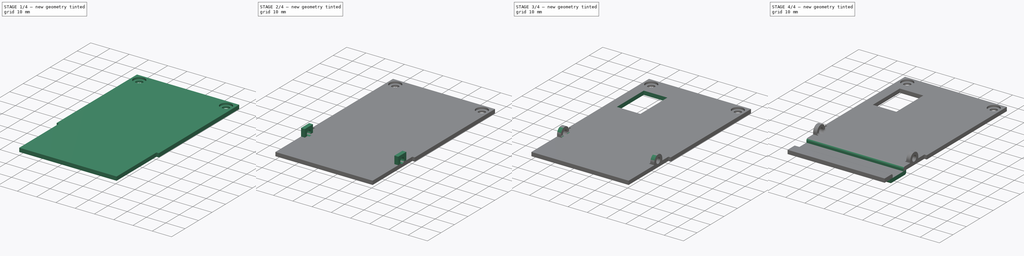
[diagram: build sequence overview — one tinted view per stage of 4, left to right]
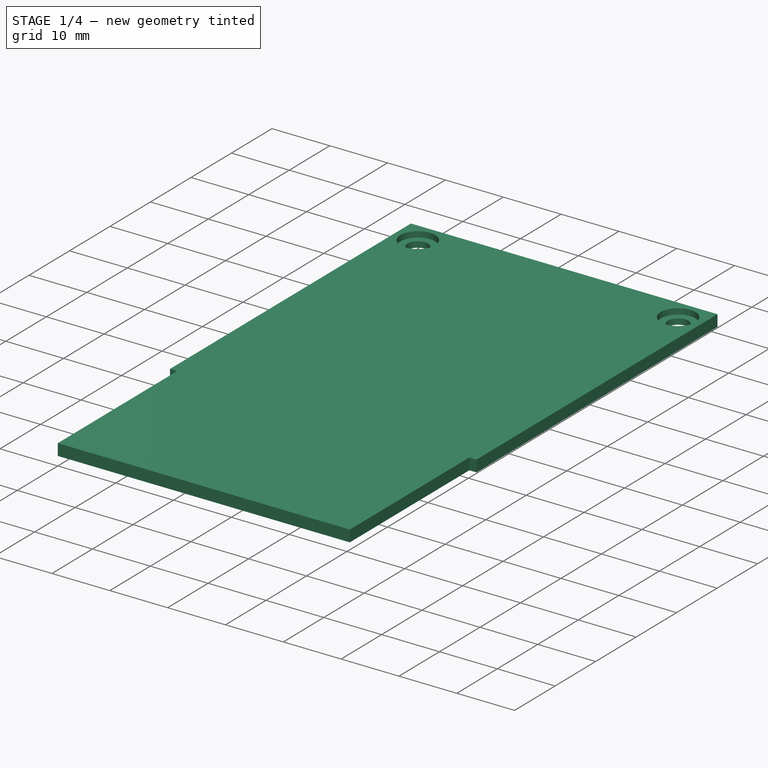
[diagram: stage 1 of 4 — iso view after this stage's code; geometry added in this stage tinted green]
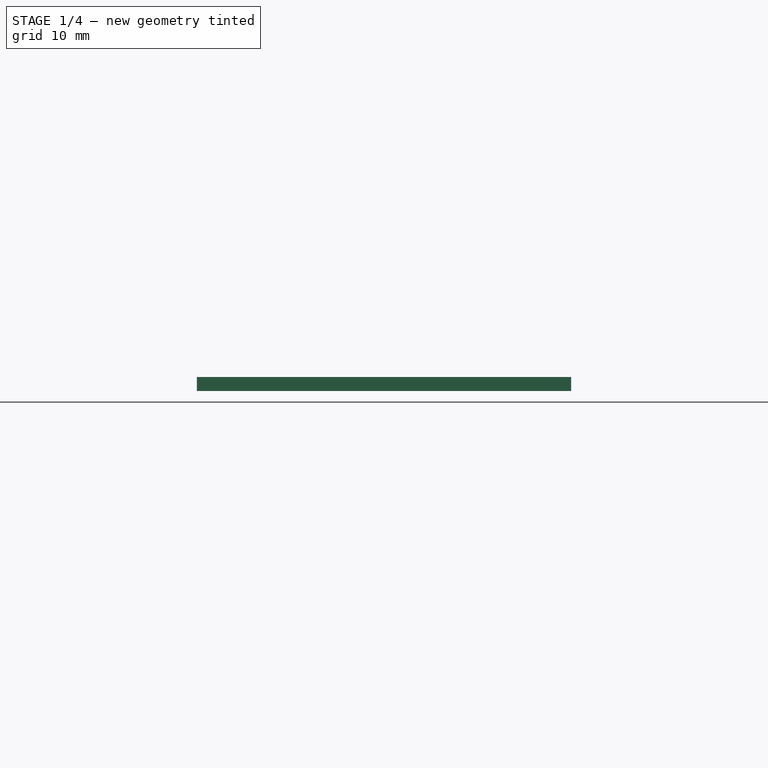
[diagram: stage 1 of 4 — front view after this stage's code; geometry added in this stage tinted green]
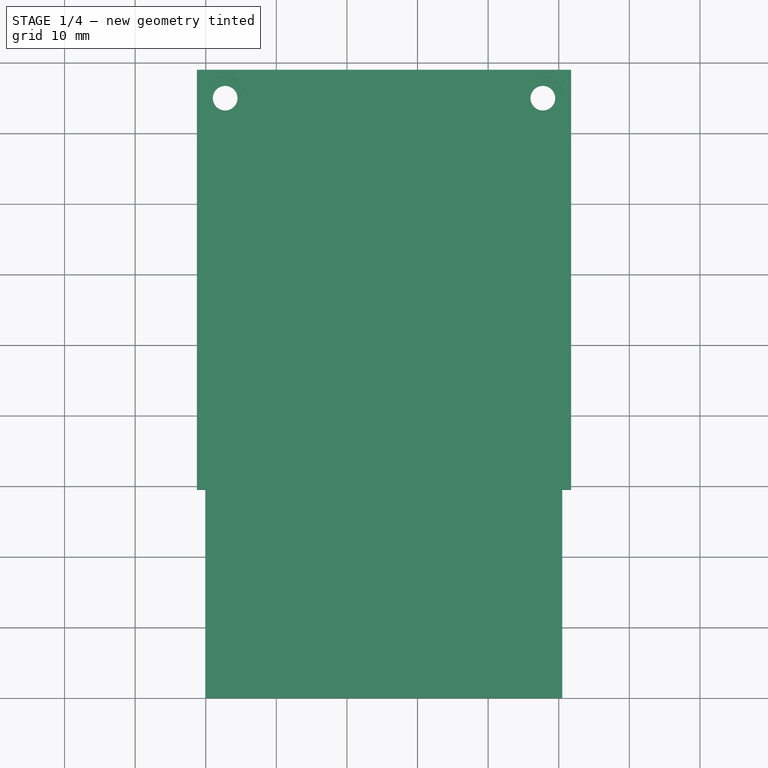
[diagram: stage 1 of 4 — top view after this stage's code; geometry added in this stage tinted green]
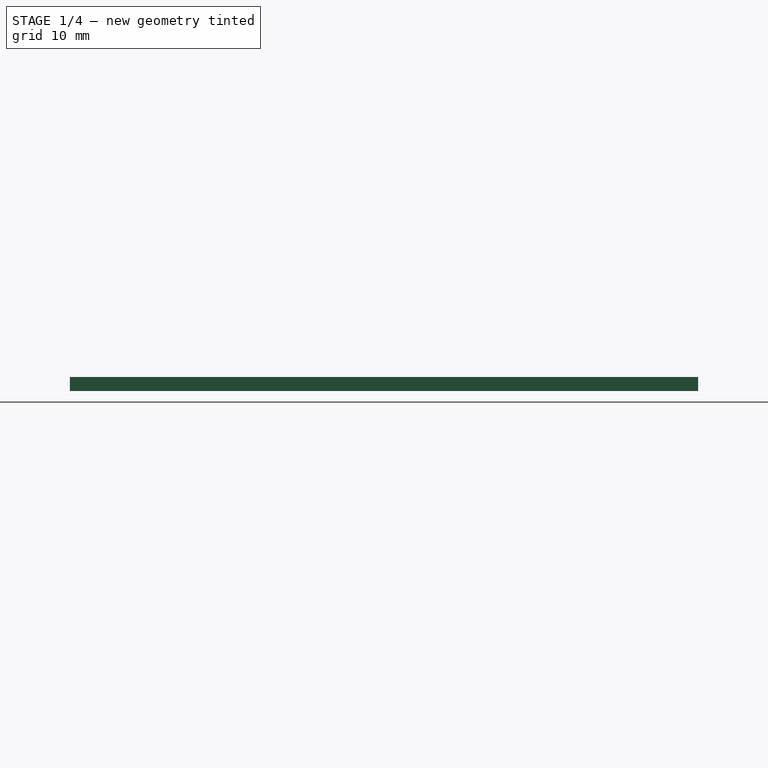
[diagram: stage 1 of 4 — right view after this stage's code; geometry added in this stage tinted green]
FCSTD DOCUMENT  (FreeCAD 0.19R)
Label: screen_case_back
License: All rights reserved
LicenseURL: http://en.wikipedia.org/wiki/All_rights_reserved
objects: Sketcher::SketchObject×9, PartDesign::Pocket×6, PartDesign::Pad×3, PartDesign::Fillet×3, PartDesign::Body×1
note: 34 computed .brp shape members not serialized (recipe doc carries the construction recipe); baked Part::Feature solids carry a one-line shape summary decoded from their .brp

FEATURE [Sketcher::SketchObject] Sketch
  FullyConstrained = true
  MapMode = 5
  Support = -> [XY_Plane]
  sketch-geometry (8):
    g0: LineSegment StartX=0 StartY=0 StartZ=0 EndX=0 EndY=29.5 EndZ=0
    g1: LineSegment StartX=0 StartY=29.5 StartZ=0 EndX=-1.25 EndY=29.5 EndZ=0
    g2: LineSegment StartX=-1.25 StartY=29.5 StartZ=0 EndX=-1.25 EndY=89 EndZ=0
    g3: LineSegment StartX=-1.25 StartY=89 StartZ=0 EndX=51.75 EndY=89 EndZ=0
    g4: LineSegment StartX=51.75 StartY=89 StartZ=0 EndX=51.75 EndY=29.5 EndZ=0
    g5: LineSegment StartX=51.75 StartY=29.5 StartZ=0 EndX=50.5 EndY=29.5 EndZ=0
    g6: LineSegment StartX=50.5 StartY=29.5 StartZ=0 EndX=50.5 EndY=0 EndZ=0
    g7: LineSegment StartX=50.5 StartY=0 StartZ=0 EndX=0 EndY=0 EndZ=0
  constraints (23):
    c: Coincident(g-1,g0)
    c: Coincident(g0,g1)
    c: Horizontal(g1)
    c: Coincident(g1,g2)
    c: Vertical(g2)
    c: Coincident(g2,g3)
    c: Horizontal(g3)
    c: Coincident(g3,g4)
    c: Vertical(g4)
    c: Coincident(g4,g5)
    c: Horizontal(g5)
    c: Coincident(g5,g6)
    c: Vertical(g6)
    c: Coincident(g6,g7)
    c: Coincident(g7,g0)
    c: Vertical(g0)
    c: Horizontal(g7)
    c: DistanceX(g7,g7) = 50.5
    c: DistanceX(g3,g3) = 53
    c: Equal(g1,g5)
    c: DistanceY(g2,g2) = 59.5
    c: DistanceY(g0,g2) = 89
    c: Equal(g4,g2)
FEATURE [PartDesign::Pad] Pad
  Direction = (1,1,1)
  Length = 2
  Length2 = 100
  Profile = -> Sketch
  Type = 0
FEATURE [Sketcher::SketchObject] Sketch001
  FullyConstrained = true
  MapMode = 5
  Placement = pos=(0,0,2) rot=(0,0,1;0rad)
  Support = -> [Pad]
  sketch-geometry (10):
    g0: LineSegment StartX=-1.25 StartY=89 StartZ=0 EndX=5.75 EndY=89 EndZ=0
    g1: LineSegment StartX=5.75 StartY=89 StartZ=0 EndX=5.75 EndY=82 EndZ=0
    g2: LineSegment StartX=5.75 StartY=82 StartZ=0 EndX=-1.25 EndY=82 EndZ=0
    g3: LineSegment StartX=-1.25 StartY=82 StartZ=0 EndX=-1.25 EndY=89 EndZ=0
    g4: LineSegment StartX=51.75 StartY=89 StartZ=0 EndX=44.75 EndY=89 EndZ=0
    g5: LineSegment StartX=44.75 StartY=89 StartZ=0 EndX=44.75 EndY=82 EndZ=0
    g6: LineSegment StartX=44.75 StartY=82 StartZ=0 EndX=51.75 EndY=82 EndZ=0
    g7: LineSegment StartX=51.75 StartY=82 StartZ=0 EndX=51.75 EndY=89 EndZ=0
    g8: Circle CenterX=2.75 CenterY=85 CenterZ=0 NormalX=0 NormalY=0 NormalZ=1 AngleXU=0 Radius=3
    g9: Circle CenterX=47.75 CenterY=85 CenterZ=0 NormalX=0 NormalY=0 NormalZ=1 AngleXU=0 Radius=3
  constraints (30):
    c: Coincident(g0,g1)
    c: Coincident(g1,g2)
    c: Coincident(g2,g3)
    c: Coincident(g3,g0)
    c: Horizontal(g0)
    c: Horizontal(g2)
    c: Vertical(g1)
    c: Vertical(g3)
    c: DistanceX(g0,g0) = 7
    c: Equal(g1,g0)
    c: DistanceY(g-1,g0) = 89
    c: DistanceX(g0,g-1) = 1.25
    c: Coincident(g4,g5)
    c: Coincident(g5,g6)
    c: Coincident(g6,g7)
    c: Coincident(g7,g4)
    c: Horizontal(g4)
    c: Horizontal(g6)
    c: Vertical(g5)
    c: Vertical(g7)
    c: Equal(g5,g4)
    c: Equal(g4,g1)
    c: DistanceX(g0,g4) = 53
    c: DistanceY(g0,g4) = 0
    c: DistanceX(g8,g1) = 3
    c: DistanceY(g1,g8) = 3
    c: Diameter(g8) = 6
    c: Equal(g8,g9)
    c: DistanceX(g5,g9) = 3
    c: DistanceY(g5,g9) = 3
FEATURE [PartDesign::Pocket] Pocket
  BaseFeature = -> Pad
  Length = 1
  Length2 = 100
  Profile = -> Sketch001
  Type = 0
FEATURE [Sketcher::SketchObject] Sketch002
  FullyConstrained = true
  MapMode = 5
  Placement = pos=(0,0,1) rot=(0,0,1;0rad)
  Support = -> [Pocket]
  sketch-geometry (10):
    g0: LineSegment StartX=-1.25 StartY=89 StartZ=0 EndX=5.75 EndY=89 EndZ=0
    g1: LineSegment StartX=5.75 StartY=89 StartZ=0 EndX=5.75 EndY=82 EndZ=0
    g2: LineSegment StartX=5.75 StartY=82 StartZ=0 EndX=-1.25 EndY=82 EndZ=0
    g3: LineSegment StartX=-1.25 StartY=82 StartZ=0 EndX=-1.25 EndY=89 EndZ=0
    g4: LineSegment StartX=51.75 StartY=89 StartZ=0 EndX=44.75 EndY=89 EndZ=0
    g5: LineSegment StartX=44.75 StartY=89 StartZ=0 EndX=44.75 EndY=82 EndZ=0
    g6: LineSegment StartX=44.75 StartY=82 StartZ=0 EndX=51.75 EndY=82 EndZ=0
    g7: LineSegment StartX=51.75 StartY=82 StartZ=0 EndX=51.75 EndY=89 EndZ=0
    g8: Circle CenterX=2.75 CenterY=85 CenterZ=0 NormalX=0 NormalY=0 NormalZ=1 AngleXU=0 Radius=1.75
    g9: Circle CenterX=47.75 CenterY=85 CenterZ=0 NormalX=0 NormalY=0 NormalZ=1 AngleXU=0 Radius=1.75
  constraints (30):
    c: Coincident(g0,g1)
    c: Coincident(g1,g2)
    c: Coincident(g2,g3)
    c: Coincident(g3,g0)
    c: Horizontal(g0)
    c: Horizontal(g2)
    c: Vertical(g1)
    c: Vertical(g3)
    c: Coincident(g4,g5)
    c: Coincident(g5,g6)
    c: Coincident(g6,g7)
    c: Coincident(g7,g4)
    c: Horizontal(g4)
    c: Horizontal(g6)
    c: Vertical(g5)
    c: Vertical(g7)
    c: Equal(g0,g1)
    c: Equal(g1,g5)
    c: Equal(g5,g4)
    c: DistanceX(g0,g0) = 7
    c: DistanceY(g4,g0) = 0
    c: DistanceX(g0,g4) = 53
    c: DistanceY(g-1,g0) = 89
    c: DistanceX(g0,g-1) = 1.25
    c: Diameter(g8) = 3.5
    c: Equal(g8,g9)
    c: DistanceY(g1,g8) = 3
    c: DistanceX(g8,g1) = 3
    c: DistanceX(g5,g9) = 3
    c: DistanceY(g5,g9) = 3
FEATURE [PartDesign::Pocket] Pocket001
  BaseFeature = -> Pocket
  Length = 5
  Length2 = 100
  Profile = -> Sketch002
  Type = 2
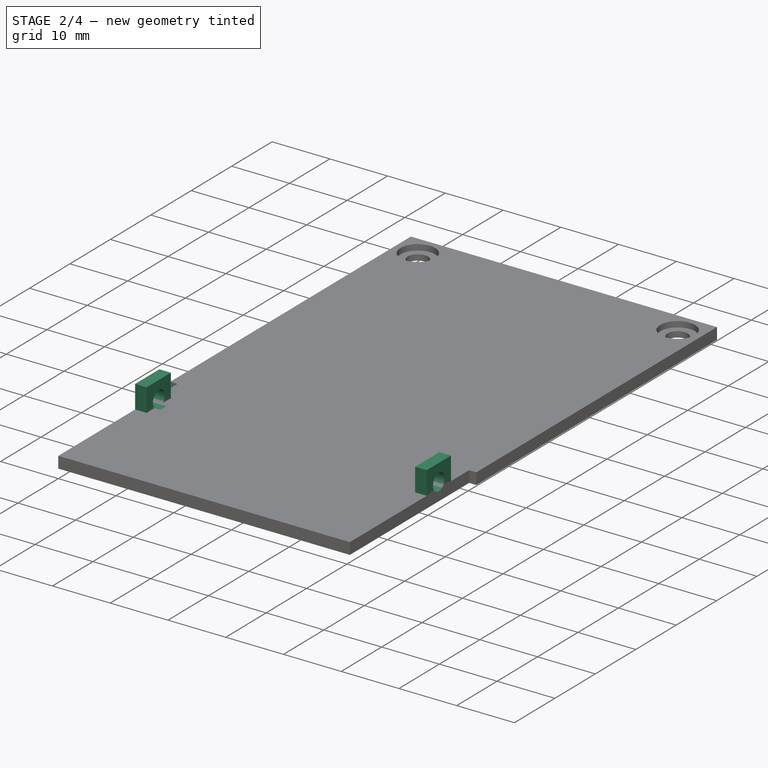
[diagram: stage 2 of 4 — iso view after this stage's code; geometry added in this stage tinted green]
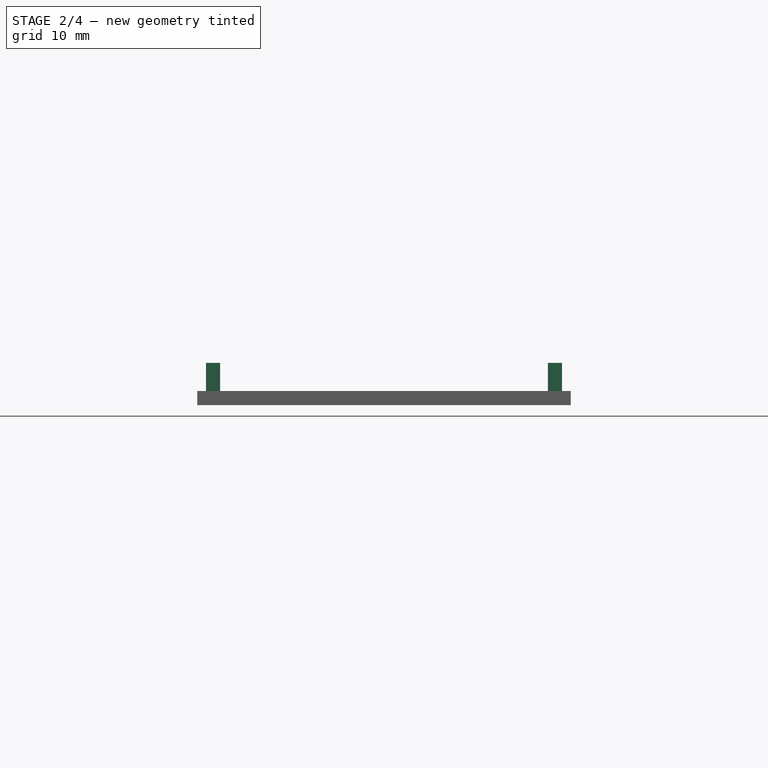
[diagram: stage 2 of 4 — front view after this stage's code; geometry added in this stage tinted green]
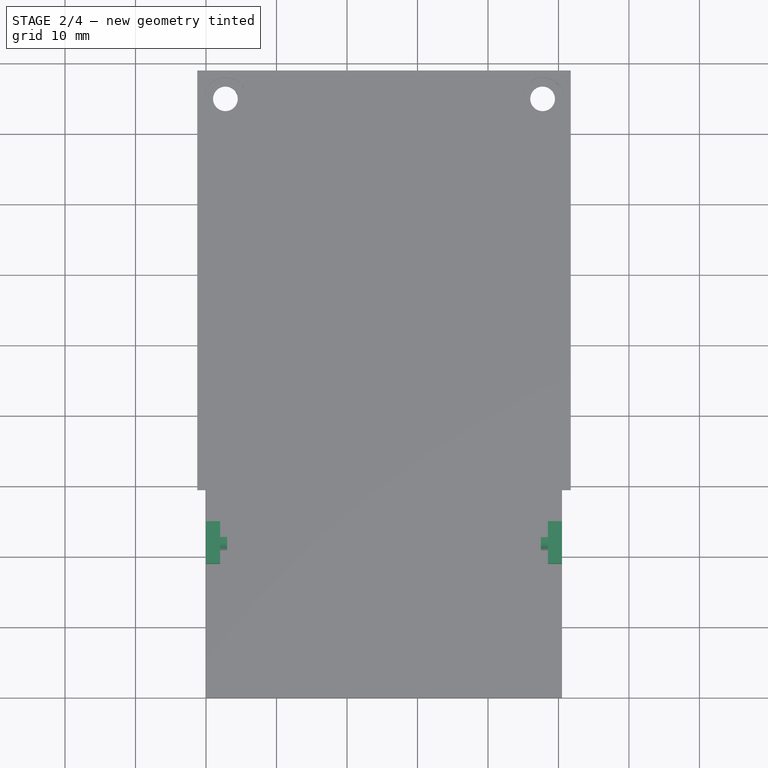
[diagram: stage 2 of 4 — top view after this stage's code; geometry added in this stage tinted green]
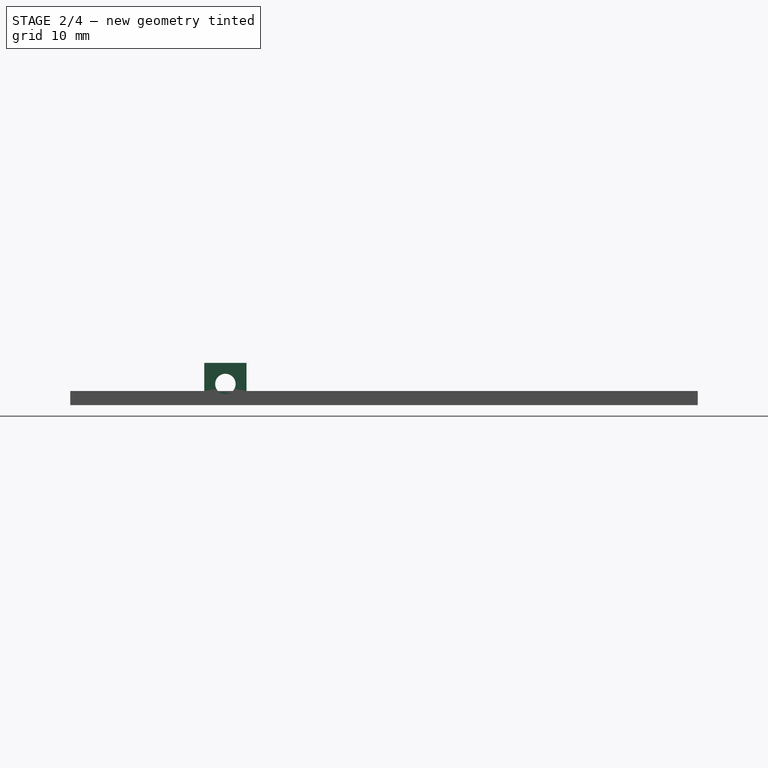
[diagram: stage 2 of 4 — right view after this stage's code; geometry added in this stage tinted green]
FEATURE [Sketcher::SketchObject] Sketch003
  FullyConstrained = true
  MapMode = 5
  Placement = pos=(0,0,2) rot=(0,0,1;0rad)
  Support = -> [Pocket001]
  sketch-geometry (8):
    g0: LineSegment StartX=0 StartY=25 StartZ=0 EndX=2 EndY=25 EndZ=0
    g1: LineSegment StartX=2 StartY=25 StartZ=0 EndX=2 EndY=19 EndZ=0
    g2: LineSegment StartX=2 StartY=19 StartZ=0 EndX=0 EndY=19 EndZ=0
    g3: LineSegment StartX=0 StartY=19 StartZ=0 EndX=0 EndY=25 EndZ=0
    g4: LineSegment StartX=50.5 StartY=25 StartZ=0 EndX=48.5 EndY=25 EndZ=0
    g5: LineSegment StartX=48.5 StartY=25 StartZ=0 EndX=48.5 EndY=19 EndZ=0
    g6: LineSegment StartX=48.5 StartY=19 StartZ=0 EndX=50.5 EndY=19 EndZ=0
    g7: LineSegment StartX=50.5 StartY=19 StartZ=0 EndX=50.5 EndY=25 EndZ=0
  constraints (24):
    c: Coincident(g0,g1)
    c: Coincident(g1,g2)
    c: Coincident(g2,g3)
    c: Coincident(g3,g0)
    c: Horizontal(g0)
    c: Horizontal(g2)
    c: Vertical(g1)
    c: Vertical(g3)
    c: PointOnObject(g0,g-2)
    c: Coincident(g4,g5)
    c: Coincident(g5,g6)
    c: Coincident(g6,g7)
    c: Coincident(g7,g4)
    c: Horizontal(g4)
    c: Horizontal(g6)
    c: Vertical(g5)
    c: Vertical(g7)
    c: DistanceY(g-1,g0) = 25
    c: DistanceY(g3,g3) = 6
    c: DistanceX(g0,g0) = 2
    c: Equal(g1,g5)
    c: Equal(g0,g4)
    c: DistanceX(g0,g4) = 50.5
    c: DistanceY(g0,g4) = 0
FEATURE [PartDesign::Pad] Pad001
  BaseFeature = -> Pocket001
  Direction = (1,1,1)
  Length = 4
  Length2 = 100
  Profile = -> Sketch003
  Type = 0
FEATURE [Sketcher::SketchObject] Sketch004
  FullyConstrained = true
  MapMode = 5
  Placement = pos=(0,0,0) rot=(0.57735,-0.57735,-0.57735;2.0944rad)
  Support = -> [Pad001]
  sketch-geometry (1):
    g0: Circle CenterX=-22 CenterY=3 CenterZ=0 NormalX=0 NormalY=0 NormalZ=1 AngleXU=0 Radius=1.45
  constraints (3):
    c: Diameter(g0) = 2.9
    c: DistanceX(g0,g-1) = 22
    c: DistanceY(g-1,g0) = 3
FEATURE [PartDesign::Pocket] Pocket002
  BaseFeature = -> Pad001
  Length = 3
  Length2 = 100
  Profile = -> Sketch004
  Type = 0
FEATURE [Sketcher::SketchObject] Sketch005
  FullyConstrained = true
  MapMode = 5
  Placement = pos=(50.5,0,0) rot=(0.57735,0.57735,0.57735;2.0944rad)
  Support = -> [Pocket002]
  sketch-geometry (1):
    g0: Circle CenterX=22 CenterY=3 CenterZ=0 NormalX=0 NormalY=0 NormalZ=1 AngleXU=0 Radius=1.45
  constraints (3):
    c: Diameter(g0) = 2.9
    c: DistanceX(g-1,g0) = 22
    c: DistanceY(g-1,g0) = 3
FEATURE [PartDesign::Pocket] Pocket003
  BaseFeature = -> Pocket002
  Length = 3
  Length2 = 100
  Profile = -> Sketch005
  Type = 0
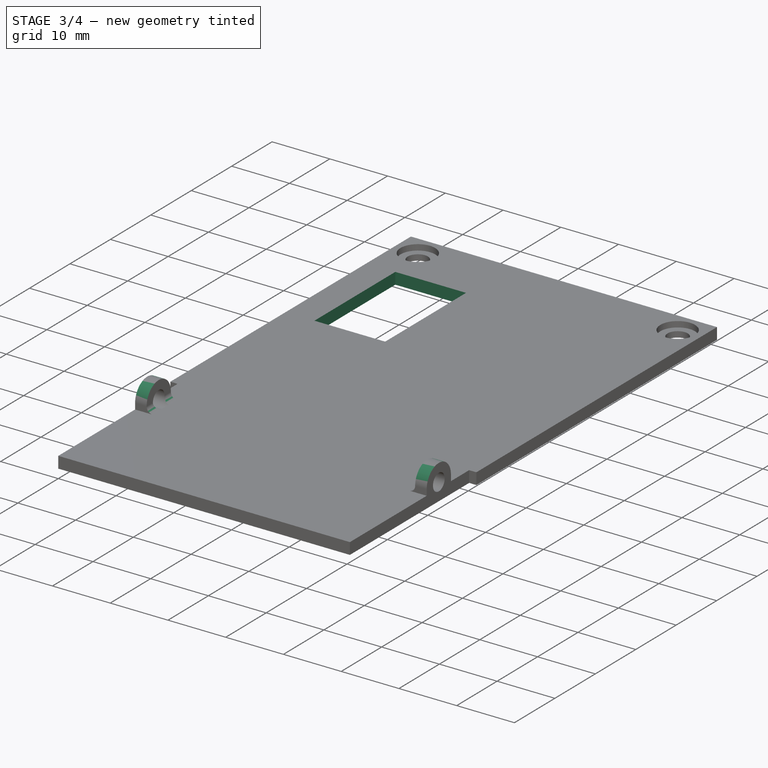
[diagram: stage 3 of 4 — iso view after this stage's code; geometry added in this stage tinted green]
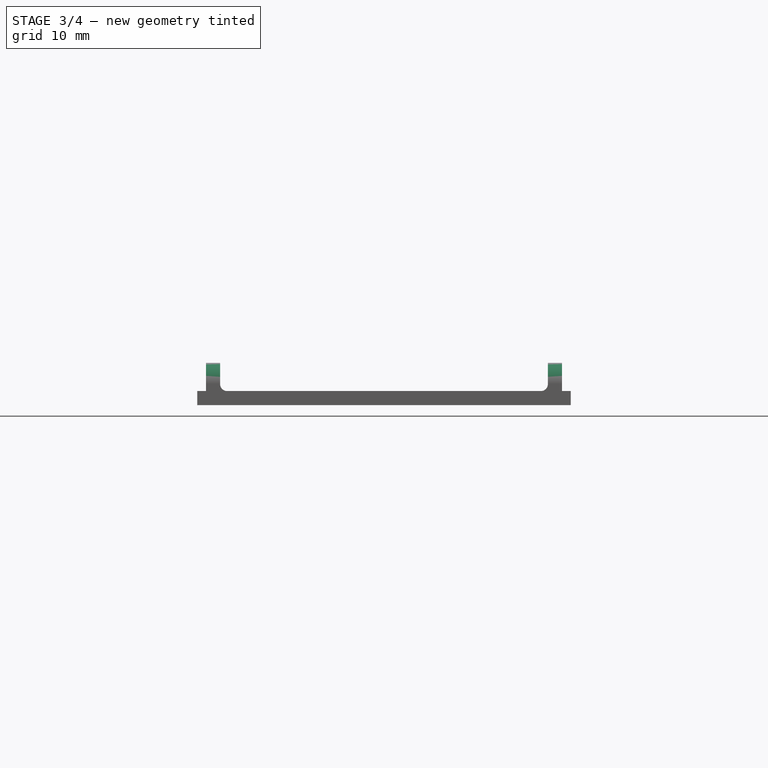
[diagram: stage 3 of 4 — front view after this stage's code; geometry added in this stage tinted green]
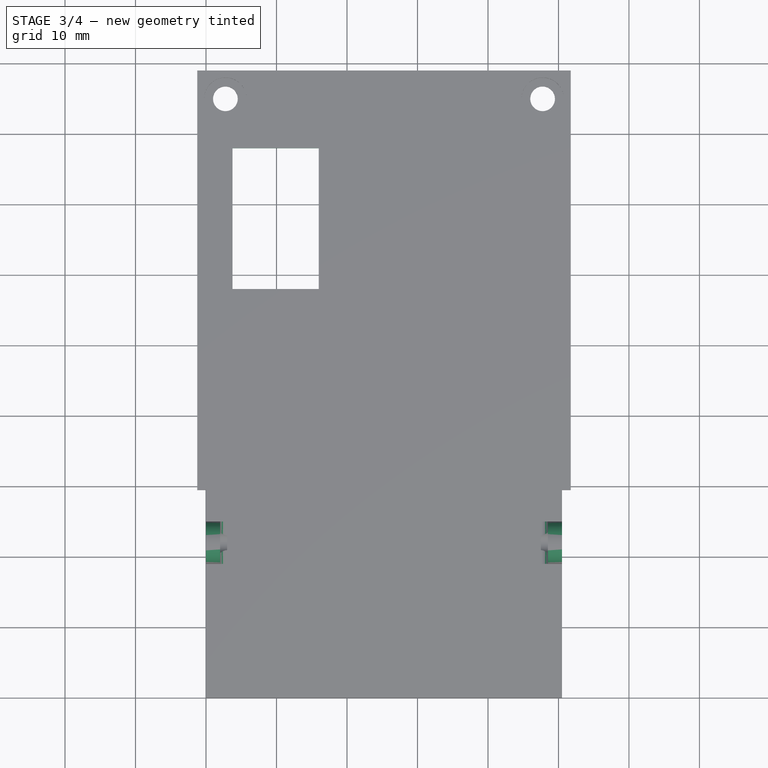
[diagram: stage 3 of 4 — top view after this stage's code; geometry added in this stage tinted green]
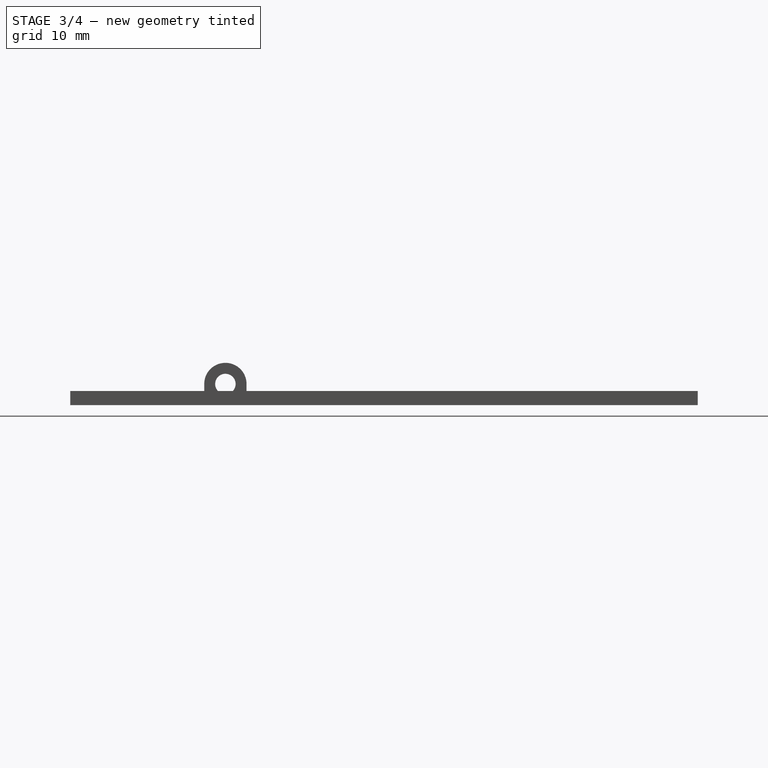
[diagram: stage 3 of 4 — right view after this stage's code; geometry added in this stage tinted green]
FEATURE [PartDesign::Fillet] Fillet
  Base = -> Pocket003 [Edge78,Edge81,Edge66,Edge76]
  BaseFeature = -> Pocket003
  Radius = 2.99
  SupportTransform = false
FEATURE [PartDesign::Fillet] Fillet001
  Base = -> Fillet [Edge48,Edge46,Edge34,Edge38]
  BaseFeature = -> Fillet
  Radius = 1
  SupportTransform = false
FEATURE [Sketcher::SketchObject] Sketch006
  FullyConstrained = true
  MapMode = 5
  Placement = pos=(0,0,2) rot=(0,0,1;0rad)
  Support = -> [Fillet001]
  sketch-geometry (4):
    g0: LineSegment StartX=3.75 StartY=78 StartZ=0 EndX=16 EndY=78 EndZ=0
    g1: LineSegment StartX=16 StartY=78 StartZ=0 EndX=16 EndY=58 EndZ=0
    g2: LineSegment StartX=16 StartY=58 StartZ=0 EndX=3.75 EndY=58 EndZ=0
    g3: LineSegment StartX=3.75 StartY=58 StartZ=0 EndX=3.75 EndY=78 EndZ=0
  constraints (12):
    c: Coincident(g0,g1)
    c: Coincident(g1,g2)
    c: Coincident(g2,g3)
    c: Coincident(g3,g0)
    c: Horizontal(g0)
    c: Horizontal(g2)
    c: Vertical(g1)
    c: Vertical(g3)
    c: DistanceX(g0,g0) = 12.25
    c: DistanceY(g1,g1) = 20
    c: DistanceX(g-1,g2) = 3.75
    c: DistanceY(g-1,g2) = 58
FEATURE [PartDesign::Pocket] Pocket004
  BaseFeature = -> Fillet001
  Length = 5
  Length2 = 100
  Profile = -> Sketch006
  Type = 2
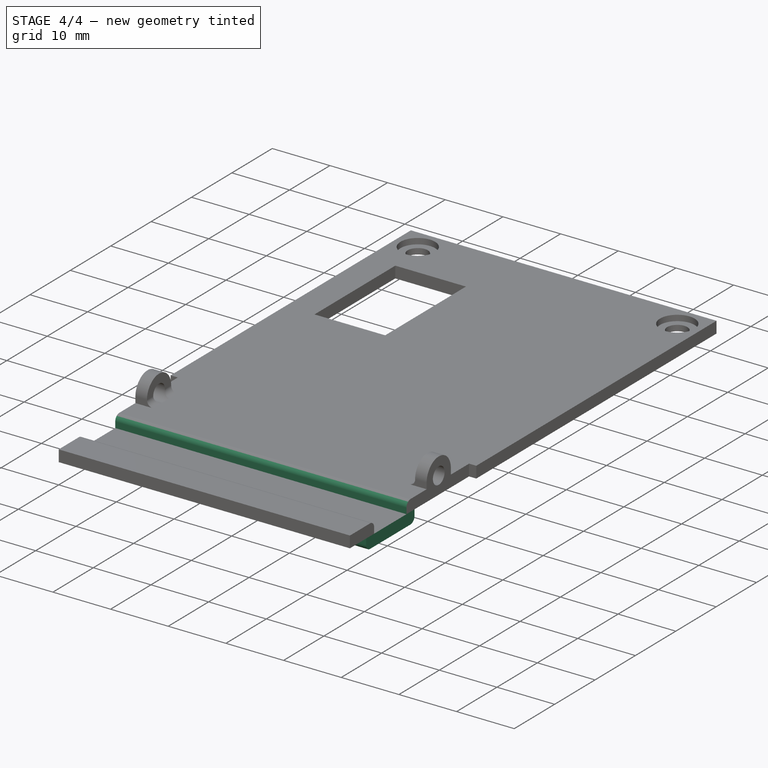
[diagram: stage 4 of 4 — iso view after this stage's code; geometry added in this stage tinted green]
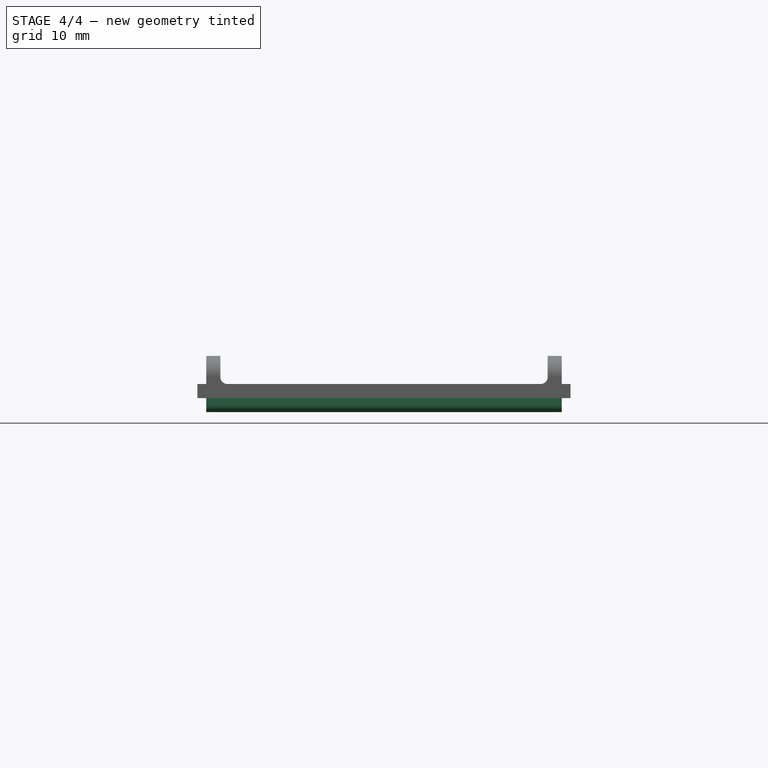
[diagram: stage 4 of 4 — front view after this stage's code; geometry added in this stage tinted green]
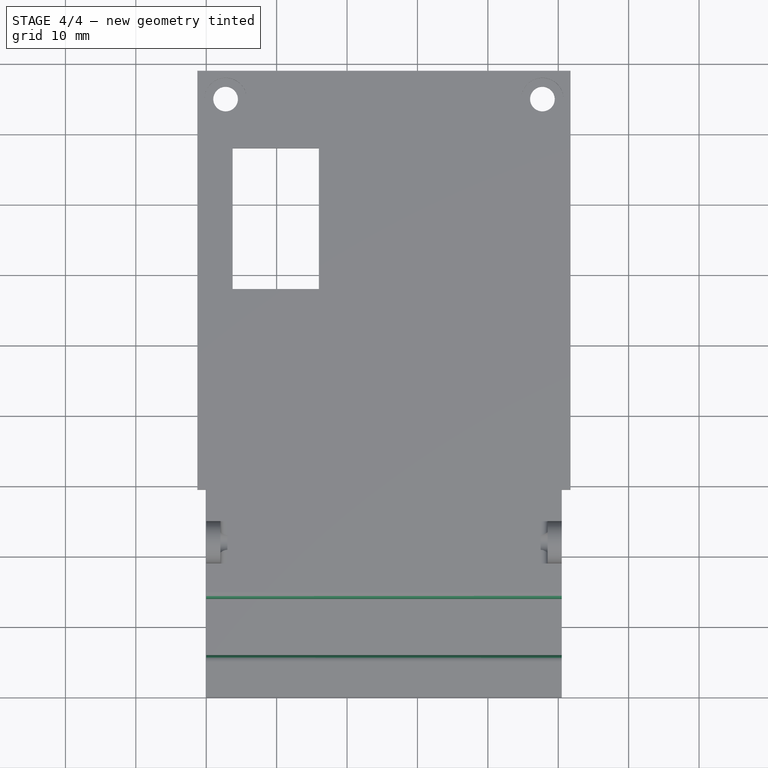
[diagram: stage 4 of 4 — top view after this stage's code; geometry added in this stage tinted green]
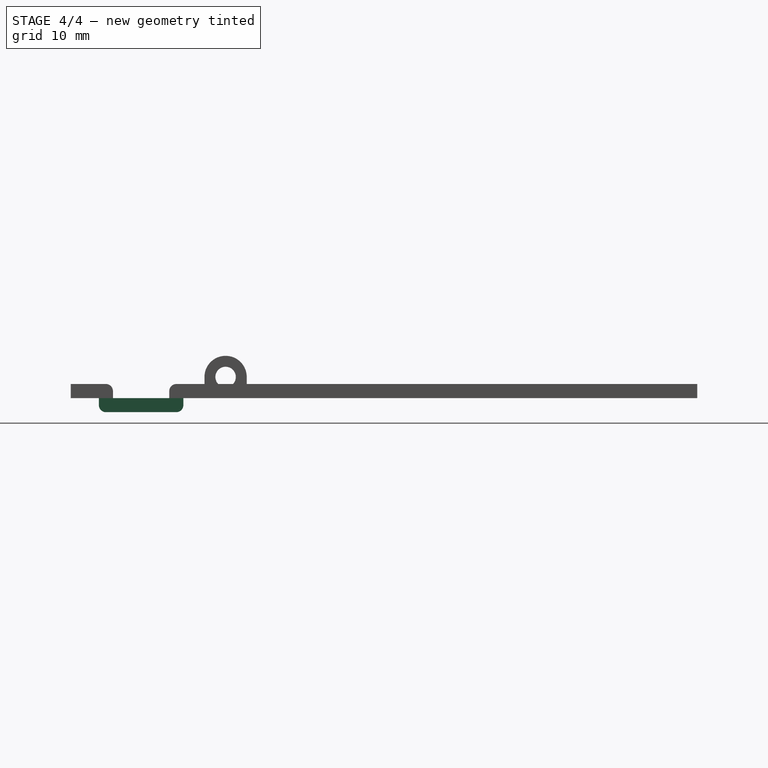
[diagram: stage 4 of 4 — right view after this stage's code; geometry added in this stage tinted green]
FEATURE [Sketcher::SketchObject] Sketch007
  FullyConstrained = true
  MapMode = 5
  Placement = pos=(0,0,0) rot=(1,0,0;3.14159rad)
  Support = -> [Pocket004]
  sketch-geometry (4):
    g0: LineSegment StartX=0 StartY=-4 StartZ=0 EndX=50.5 EndY=-4 EndZ=0
    g1: LineSegment StartX=50.5 StartY=-4 StartZ=0 EndX=50.5 EndY=-16 EndZ=0
    g2: LineSegment StartX=50.5 StartY=-16 StartZ=0 EndX=0 EndY=-16 EndZ=0
    g3: LineSegment StartX=0 StartY=-16 StartZ=0 EndX=0 EndY=-4 EndZ=0
  constraints (12):
    c: Coincident(g0,g1)
    c: Coincident(g1,g2)
    c: Coincident(g2,g3)
    c: Coincident(g3,g0)
    c: Horizontal(g0)
    c: Horizontal(g2)
    c: Vertical(g1)
    c: Vertical(g3)
    c: PointOnObject(g0,g-2)
    c: DistanceX(g0,g0) = 50.5
    c: DistanceY(g0,g-1) = 4
    c: DistanceY(g1,g1) = 12
FEATURE [PartDesign::Pad] Pad002
  BaseFeature = -> Pocket004
  Direction = (1,1,1)
  Length = 2
  Length2 = 100
  Profile = -> Sketch007
  Type = 0
FEATURE [Sketcher::SketchObject] Sketch008
  FullyConstrained = true
  MapMode = 5
  Placement = pos=(0,0,2) rot=(0,0,1;0rad)
  Support = -> [Pad002]
  sketch-geometry (4):
    g0: LineSegment StartX=0 StartY=6 StartZ=0 EndX=50.5 EndY=6 EndZ=0
    g1: LineSegment StartX=50.5 StartY=6 StartZ=0 EndX=50.5 EndY=14 EndZ=0
    g2: LineSegment StartX=50.5 StartY=14 StartZ=0 EndX=0 EndY=14 EndZ=0
    g3: LineSegment StartX=0 StartY=14 StartZ=0 EndX=0 EndY=6 EndZ=0
  constraints (12):
    c: Coincident(g0,g1)
    c: Coincident(g1,g2)
    c: Coincident(g2,g3)
    c: Coincident(g3,g0)
    c: Horizontal(g0)
    c: Horizontal(g2)
    c: Vertical(g1)
    c: Vertical(g3)
    c: PointOnObject(g0,g-2)
    c: DistanceX(g2,g2) = 50.5
    c: DistanceY(g1,g1) = 8
    c: DistanceY(g-1,g0) = 6
FEATURE [PartDesign::Pocket] Pocket005
  BaseFeature = -> Pad002
  Length = 2
  Length2 = 100
  Profile = -> Sketch008
  Type = 0
FEATURE [PartDesign::Fillet] Fillet002
  Base = -> Pocket005 [Edge20,Edge143,Edge133,Edge135]
  BaseFeature = -> Pocket005
  Radius = 1
  SupportTransform = false
FEATURE [PartDesign::Body] Body
  Group = -> [Sketch,Pad,Sketch001,Pocket,Sketch002,Pocket001,Sketch003,Pad001,Sketch004,Pocket002,Sketch005,Pocket003,Fillet,Fillet001,Sketch006,Pocket004,Sketch007,Pad002,Sketch008,Pocket005,Fillet002]
  Origin = -> Origin
  Tip = -> Fillet002
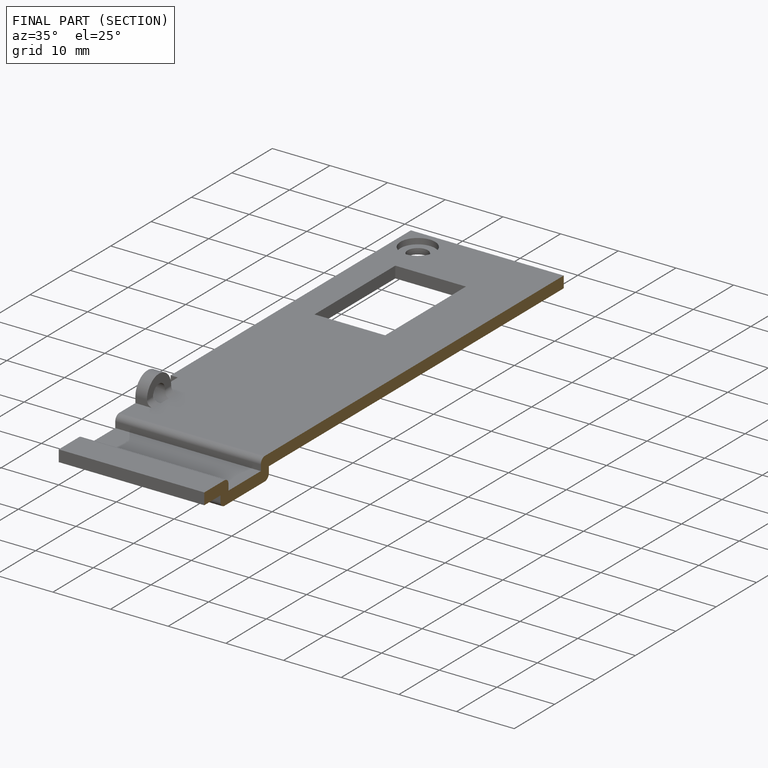
[diagram: finished part — half-section view (interior)]
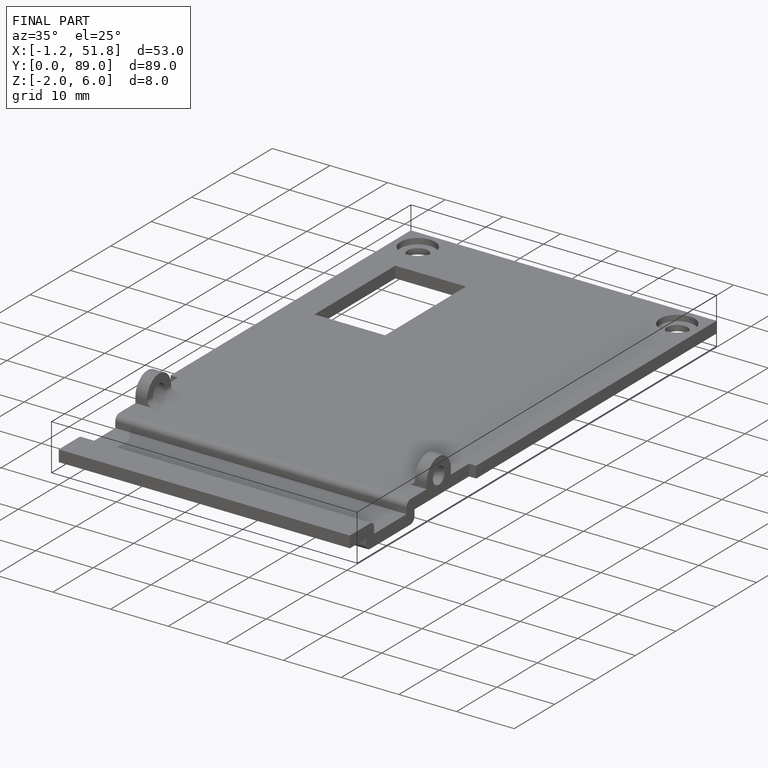
[diagram: finished part — iso view with bounding-box wireframe]
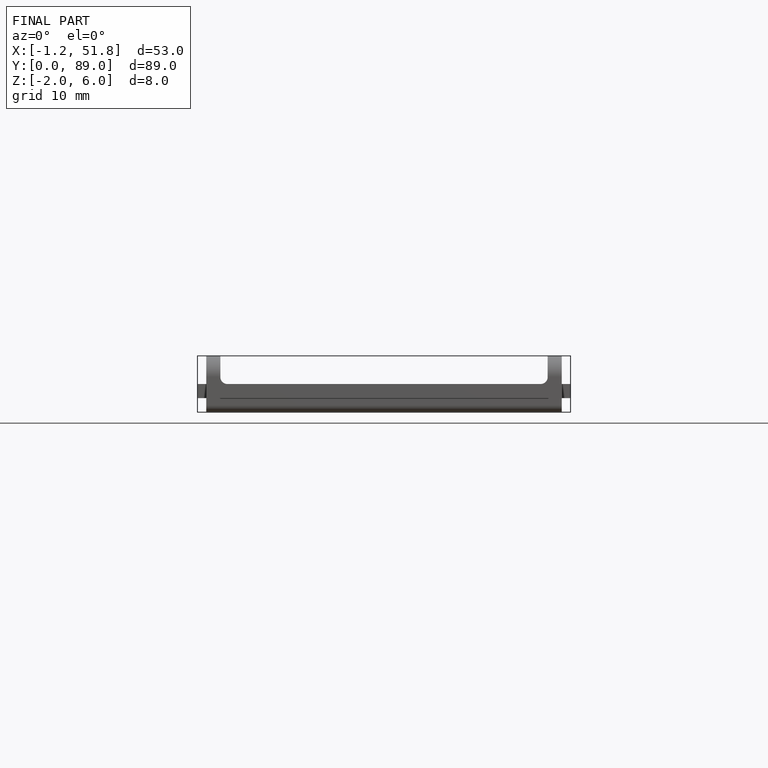
[diagram: finished part — front view with bounding-box wireframe]
